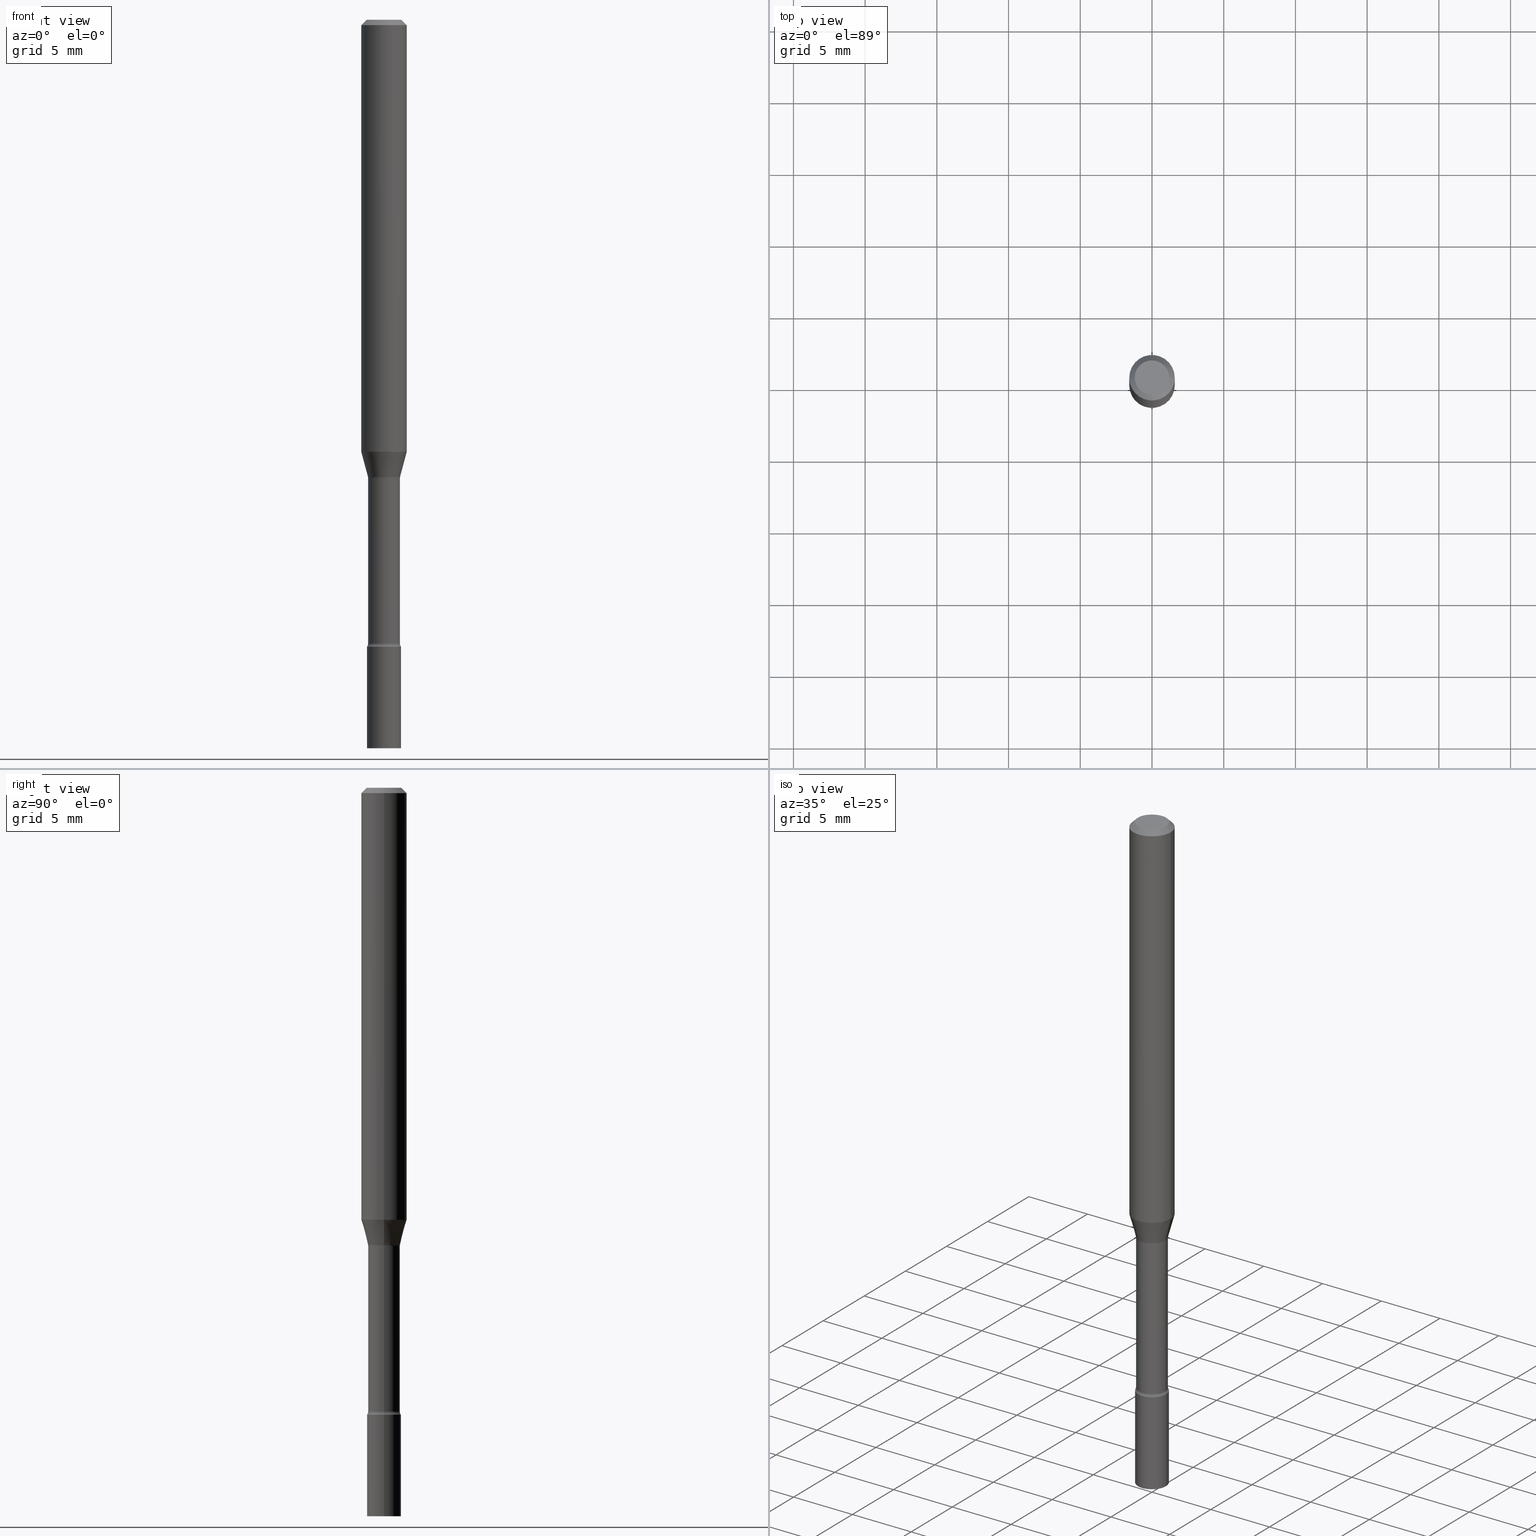
[diagram: canonical four-view strip — front | top / right | iso, engineering-drawing reading convention]
A machine part, canonical four-view strip (front | top / right | iso — engineering-drawing reading convention). The complete STEP part file that produces these views, byte-faithful:
ISO-10303-21;
HEADER;
FILE_DESCRIPTION (( 'STEP AP203' ),
    '1' );
FILE_NAME ('09395.STEP',
    '2024-03-08T23:40:34',
    ( '' ),
    ( '' ),
    'SwSTEP 2.0',
    'SolidWorks 2023',
    '' );
FILE_SCHEMA (( 'CONFIG_CONTROL_DESIGN' ));
ENDSEC;

DATA;
#1 = FACE_OUTER_BOUND ( 'NONE', #452, .T. ) ;
#2 = VERTEX_POINT ( 'NONE', #27 ) ;
#3 = CARTESIAN_POINT ( 'NONE',  ( 0.04421111260566398110, -4.687365116437714355E-15, -1.254092501787273051 ) ) ;
#4 = CIRCLE ( 'NONE', #293, 0.04369999999999994722 ) ;
#5 = VERTEX_POINT ( 'NONE', #342 ) ;
#6 = DIRECTION ( 'NONE',  ( -1.000000000000000000, 7.105427357601009747E-15, 0.000000000000000000 ) ) ;
#7 = ORIENTED_EDGE ( 'NONE', *, *, #67, .T. ) ;
#8 = LOCAL_TIME ( 18, 40, 34.00000000000000000, #438 ) ;
#9 = ADVANCED_BREP_SHAPE_REPRESENTATION ( '09395', ( #127, #250, #129 ), #277 ) ;
#10 = VECTOR ( 'NONE', #117, 39.37007874015748143 ) ;
#11 = DIRECTION ( 'NONE',  ( -2.445468806185136597E-29, 3.491481338843145583E-15, 1.000000000000000000 ) ) ;
#12 = ORIENTED_EDGE ( 'NONE', *, *, #119, .F. ) ;
#13 = PLANE ( 'NONE',  #120 ) ;
#14 = ORIENTED_EDGE ( 'NONE', *, *, #245, .F. ) ;
#15 = PRODUCT_DEFINITION ( 'UNKNOWN', '', #72, #295 ) ;
#16 = DIRECTION ( 'NONE',  ( -0.2588190451025214611, 5.211531920934550253E-15, 0.9659258262890679791 ) ) ;
#17 = EDGE_LOOP ( 'NONE', ( #235, #61, #352, #364 ) ) ;
#18 = LOCAL_TIME ( 18, 40, 34.00000000000000000, #380 ) ;
#19 = PERSON_AND_ORGANIZATION ( #410, #106 ) ;
#20 = PERSON_AND_ORGANIZATION ( #410, #106 ) ;
#21 = DIRECTION ( 'NONE',  ( -0.7071067811865475727, 2.468850131082257455E-15, -0.7071067811865474617 ) ) ;
#22 = AXIS2_PLACEMENT_3D ( 'NONE', #159, #203, #314 ) ;
#23 = CALENDAR_DATE ( 2024, 8, 3 ) ;
#24 = EDGE_CURVE ( 'NONE', #417, #465, #470, .T. ) ;
#25 = FACE_OUTER_BOUND ( 'NONE', #138, .T. ) ;
#26 = CARTESIAN_POINT ( 'NONE',  ( 0.000000000000000000, 0.000000000000000000, 0.000000000000000000 ) ) ;
#27 = CARTESIAN_POINT ( 'NONE',  ( -0.04421111260566398110, -3.880370908893754533E-15, -1.254092501787273051 ) ) ;
#28 = APPROVAL_STATUS ( 'not_yet_approved' ) ;
#29 = DIRECTION ( 'NONE',  ( 1.000000000000000000, -6.982962677686261977E-15, 4.883557194083111219E-29 ) ) ;
#30 = DATE_TIME_ROLE ( 'classification_date' ) ;
#31 = DIRECTION ( 'NONE',  ( 2.445468806185136597E-29, -3.491481338843145583E-15, -1.000000000000000000 ) ) ;
#32 = VECTOR ( 'NONE', #126, 39.37007874015748143 ) ;
#33 = CARTESIAN_POINT ( 'NONE',  ( 3.668203209277712094E-31, -5.237222008264728876E-17, -0.01500000000000003067 ) ) ;
#34 = VERTEX_POINT ( 'NONE', #182 ) ;
#35 = PERSON_AND_ORGANIZATION ( #410, #106 ) ;
#36 = CARTESIAN_POINT ( 'NONE',  ( 0.06250000000000000000, -4.576764476837847734E-15, -1.185837444817705144 ) ) ;
#37 = VERTEX_POINT ( 'NONE', #381 ) ;
#38 = SHAPE_DEFINITION_REPRESENTATION ( #186, #9 ) ;
#39 = AXIS2_PLACEMENT_3D ( 'NONE', #123, #307, #274 ) ;
#40 = EDGE_CURVE ( 'NONE', #88, #465, #379, .T. ) ;
#41 = CARTESIAN_POINT ( 'NONE',  ( 3.668203209277712094E-31, -5.237222008264728876E-17, -0.01500000000000003067 ) ) ;
#42 = ORIENTED_EDGE ( 'NONE', *, *, #201, .T. ) ;
#43 = PERSON_AND_ORGANIZATION_ROLE ( 'classification_officer' ) ;
#44 = DIRECTION ( 'NONE',  ( -1.000000000000000000, 7.105427357601001859E-15, 0.000000000000000000 ) ) ;
#45 = ORIENTED_EDGE ( 'NONE', *, *, #67, .F. ) ;
#46 = DIRECTION ( 'NONE',  ( -2.445468806185136597E-29, 3.491481338843145583E-15, 1.000000000000000000 ) ) ;
#47 = VERTEX_POINT ( 'NONE', #340 ) ;
#48 = EDGE_CURVE ( 'NONE', #37, #5, #509, .T. ) ;
#49 = DIRECTION ( 'NONE',  ( 1.000000000000000000, -6.982962677686255667E-15, 0.000000000000000000 ) ) ;
#50 = CIRCLE ( 'NONE', #440, 0.06250000000000000000 ) ;
#51 = ORIENTED_EDGE ( 'NONE', *, *, #208, .T. ) ;
#52 = CARTESIAN_POINT ( 'NONE',  ( 0.04649999999999999967, -7.307670442198702662E-15, -2.000000000000000000 ) ) ;
#53 = ORIENTED_EDGE ( 'NONE', *, *, #146, .T. ) ;
#54 = CIRCLE ( 'NONE', #412, 0.06250000000000000000 ) ;
#55 = CARTESIAN_POINT ( 'NONE',  ( 0.000000000000000000, 0.000000000000000000, 0.000000000000000000 ) ) ;
#56 = ADVANCED_FACE ( 'NONE', ( #25 ), #185, .T. ) ;
#57 = EDGE_LOOP ( 'NONE', ( #85, #42, #484, #285 ) ) ;
#58 = FACE_OUTER_BOUND ( 'NONE', #205, .T. ) ;
#59 = EDGE_CURVE ( 'NONE', #160, #321, #425, .T. ) ;
#60 = CC_DESIGN_PERSON_AND_ORGANIZATION_ASSIGNMENT ( #339, #263, ( #15 ) ) ;
#61 = ORIENTED_EDGE ( 'NONE', *, *, #517, .T. ) ;
#62 = AXIS2_PLACEMENT_3D ( 'NONE', #505, #419, #145 ) ;
#63 = CARTESIAN_POINT ( 'NONE',  ( -0.04649999999999999967, -6.165498658789225463E-15, -2.000000000000000000 ) ) ;
#64 = FACE_OUTER_BOUND ( 'NONE', #198, .T. ) ;
#65 = AXIS2_PLACEMENT_3D ( 'NONE', #82, #360, #101 ) ;
#66 = DIRECTION ( 'NONE',  ( -2.445468806185136597E-29, 3.491481338843145583E-15, 1.000000000000000000 ) ) ;
#67 = EDGE_CURVE ( 'NONE', #501, #213, #148, .T. ) ;
#68 = APPROVAL_STATUS ( 'not_yet_approved' ) ;
#69 = FACE_OUTER_BOUND ( 'NONE', #486, .T. ) ;
#70 = APPROVAL ( #28, 'UNSPECIFIED' ) ;
#71 = CARTESIAN_POINT ( 'NONE',  ( 0.04421111260566398110, -4.687365116437714355E-15, -1.254092501787273051 ) ) ;
#72 = PRODUCT_DEFINITION_FORMATION_WITH_SPECIFIED_SOURCE ( 'ANY', '', #385, .NOT_KNOWN. ) ;
#73 = APPLICATION_PROTOCOL_DEFINITION ( 'international standard', 'config_control_design', 1994, #91 ) ;
#74 = CARTESIAN_POINT ( 'NONE',  ( -0.06250000000000000000, 3.840629472727443437E-16, -0.01500000000000003067 ) ) ;
#75 = COORDINATED_UNIVERSAL_TIME_OFFSET ( 5, 0, .BEHIND. ) ;
#76 = CARTESIAN_POINT ( 'NONE',  ( 4.187310283291023133E-29, -5.978369332325802035E-15, -1.712273030308291144 ) ) ;
#77 = CIRCLE ( 'NONE', #331, 0.04649999999999999967 ) ;
#78 = DATE_AND_TIME ( #81, #519 ) ;
#79 = LINE ( 'NONE', #87, #222 ) ;
#80 = EDGE_LOOP ( 'NONE', ( #207, #357, #102, #407 ) ) ;
#81 = CALENDAR_DATE ( 2024, 8, 3 ) ;
#82 = CARTESIAN_POINT ( 'NONE',  ( 3.247077645124535035E-16, 0.04649999999999399058, -1.721000000000000307 ) ) ;
#83 = ADVANCED_FACE ( 'NONE', ( #69 ), #418, .T. ) ;
#84 = CARTESIAN_POINT ( 'NONE',  ( 4.208651815444620572E-29, -6.008839384149054309E-15, -1.721000000000000085 ) ) ;
#85 = ORIENTED_EDGE ( 'NONE', *, *, #286, .F. ) ;
#86 = VECTOR ( 'NONE', #349, 39.37007874015748143 ) ;
#87 = CARTESIAN_POINT ( 'NONE',  ( 0.06250000000000000000, -4.811533449433680977E-16, -0.01500000000000003067 ) ) ;
#88 = VERTEX_POINT ( 'NONE', #297 ) ;
#89 = DIRECTION ( 'NONE',  ( -6.982962677686266711E-15, -1.000000000000000000, 3.491481338843145583E-15 ) ) ;
#90 = EDGE_LOOP ( 'NONE', ( #489, #403 ) ) ;
#91 = APPLICATION_CONTEXT ( 'configuration controlled 3d designs of mechanical parts and assemblies' ) ;
#92 = CARTESIAN_POINT ( 'NONE',  ( 7.070806723891919892E-46, -1.009523804376275404E-31, -2.891391092786900929E-17 ) ) ;
#93 = VERTEX_POINT ( 'NONE', #228 ) ;
#94 = DIRECTION ( 'NONE',  ( 1.000000000000000000, -6.982962677686266711E-15, 0.000000000000000000 ) ) ;
#95 = VECTOR ( 'NONE', #150, 39.37007874015748143 ) ;
#96 = VERTEX_POINT ( 'NONE', #265 ) ;
#97 = ADVANCED_FACE ( 'NONE', ( #463 ), #483, .F. ) ;
#98 = LINE ( 'NONE', #278, #32 ) ;
#99 = ORIENTED_EDGE ( 'NONE', *, *, #193, .T. ) ;
#100 = AXIS2_PLACEMENT_3D ( 'NONE', #243, #287, #206 ) ;
#101 = DIRECTION ( 'NONE',  ( 1.000000000000000000, -6.982962677686265922E-15, 4.876176775795935793E-29 ) ) ;
#102 = ORIENTED_EDGE ( 'NONE', *, *, #333, .T. ) ;
#103 = CARTESIAN_POINT ( 'NONE',  ( 0.000000000000000000, 0.000000000000000000, 0.000000000000000000 ) ) ;
#104 = ORIENTED_EDGE ( 'NONE', *, *, #59, .T. ) ;
#105 = FACE_OUTER_BOUND ( 'NONE', #134, .T. ) ;
#106 = ORGANIZATION ( 'UNSPECIFIED', 'UNSPECIFIED', '' ) ;
#107 = CARTESIAN_POINT ( 'NONE',  ( -0.06250000000000000000, 4.440892098500626162E-16, -3.074334431409316114E-30 ) ) ;
#108 = APPROVAL_ROLE ( '' ) ;
#109 = ORIENTED_EDGE ( 'NONE', *, *, #421, .T. ) ;
#110 = CIRCLE ( 'NONE', #230, 0.04749999999999999362 ) ;
#111 = CC_DESIGN_PERSON_AND_ORGANIZATION_ASSIGNMENT ( #20, #384, ( #385 ) ) ;
#112 = DIRECTION ( 'NONE',  ( -2.445468806185136597E-29, 3.491481338843145583E-15, 1.000000000000000000 ) ) ;
#113 = AXIS2_PLACEMENT_3D ( 'NONE', #174, #11, #166 ) ;
#114 = PERSON_AND_ORGANIZATION_ROLE ( 'creator' ) ;
#115 = CARTESIAN_POINT ( 'NONE',  ( 4.208651815444620572E-29, -6.008839384149054309E-15, -1.721000000000000085 ) ) ;
#116 = CARTESIAN_POINT ( 'NONE',  ( 0.04369999999999997498, -3.051554690148896707E-16, 2.130889251022822588E-30 ) ) ;
#117 = DIRECTION ( 'NONE',  ( -2.445468806185136877E-29, 3.491481338843145188E-15, 1.000000000000000000 ) ) ;
#118 = ORIENTED_EDGE ( 'NONE', *, *, #261, .F. ) ;
#119 = EDGE_CURVE ( 'NONE', #96, #280, #329, .T. ) ;
#120 = AXIS2_PLACEMENT_3D ( 'NONE', #409, #164, #284 ) ;
#121 = DIRECTION ( 'NONE',  ( 1.000000000000000000, -6.982962677686262766E-15, 0.000000000000000000 ) ) ;
#122 = PRODUCT_RELATED_PRODUCT_CATEGORY ( 'detail', '', ( #385 ) ) ;
#123 = CARTESIAN_POINT ( 'NONE',  ( 3.076338101710126374E-29, -4.392195495165068238E-15, -1.257974787463810973 ) ) ;
#124 = ORIENTED_EDGE ( 'NONE', *, *, #48, .T. ) ;
#125 = CIRCLE ( 'NONE', #309, 0.06250000000000000000 ) ;
#126 = DIRECTION ( 'NONE',  ( -2.445468806185136877E-29, 3.491481338843145188E-15, 1.000000000000000000 ) ) ;
#127 = MANIFOLD_SOLID_BREP ( 'Body-Move/Copy2[1]', #189 ) ;
#128 = DIRECTION ( 'NONE',  ( 1.000000000000000000, -6.982962677686262766E-15, 0.000000000000000000 ) ) ;
#129 = AXIS2_PLACEMENT_3D ( 'NONE', #266, #292, #378 ) ;
#130 = ORIENTED_EDGE ( 'NONE', *, *, #318, .F. ) ;
#131 = CARTESIAN_POINT ( 'NONE',  ( -0.04421111260566398110, -4.064501718155114829E-15, -1.254092501787273051 ) ) ;
#132 = ORIENTED_EDGE ( 'NONE', *, *, #319, .T. ) ;
#133 = DIRECTION ( 'NONE',  ( -2.445468806185136597E-29, 3.491481338843145583E-15, 1.000000000000000000 ) ) ;
#134 = EDGE_LOOP ( 'NONE', ( #14, #169, #326, #53 ) ) ;
#135 = CARTESIAN_POINT ( 'NONE',  ( -0.06250000000000000000, -1.652261554932489153E-15, -0.01500000000000003067 ) ) ;
#136 = VERTEX_POINT ( 'NONE', #223 ) ;
#137 = MECHANICAL_CONTEXT ( 'NONE', #312, 'mechanical' ) ;
#138 = EDGE_LOOP ( 'NONE', ( #480, #437 ) ) ;
#139 = APPROVAL_DATE_TIME ( #178, #70 ) ;
#140 = CARTESIAN_POINT ( 'NONE',  ( -0.04369999999999997498, 3.105071755271636034E-16, -2.149574634441392424E-30 ) ) ;
#141 = CIRCLE ( 'NONE', #161, 0.04370000000000000273 ) ;
#142 = CYLINDRICAL_SURFACE ( 'NONE', #372, 0.04369999999999997498 ) ;
#143 = DIRECTION ( 'NONE',  ( 1.000000000000000000, -6.982962677686264344E-15, 0.000000000000000000 ) ) ;
#144 = DIRECTION ( 'NONE',  ( -2.445468806185136597E-29, 3.491481338843145583E-15, 1.000000000000000000 ) ) ;
#145 = DIRECTION ( 'NONE',  ( 1.000000000000000000, -6.982962677686260400E-15, 0.000000000000000000 ) ) ;
#146 = EDGE_CURVE ( 'NONE', #280, #96, #408, .T. ) ;
#147 = PERSON_AND_ORGANIZATION ( #410, #106 ) ;
#148 = LINE ( 'NONE', #71, #387 ) ;
#149 = VECTOR ( 'NONE', #21, 39.37007874015748143 ) ;
#150 = DIRECTION ( 'NONE',  ( -2.445468806185136877E-29, 3.491481338843145188E-15, 1.000000000000000000 ) ) ;
#151 = VECTOR ( 'NONE', #16, 39.37007874015748143 ) ;
#152 = DIRECTION ( 'NONE',  ( 1.000000000000000000, -6.982962677686267499E-15, 4.876176775795936353E-29 ) ) ;
#153 = PERSON_AND_ORGANIZATION ( #410, #106 ) ;
#154 = DIRECTION ( 'NONE',  ( -1.000000000000000000, 6.982962677686266711E-15, 0.000000000000000000 ) ) ;
#155 = CARTESIAN_POINT ( 'NONE',  ( 0.06250000000000000000, -4.364351673553916694E-16, 3.047610484872459871E-30 ) ) ;
#156 = SECURITY_CLASSIFICATION_LEVEL ( 'unclassified' ) ;
#157 = APPROVAL_PERSON_ORGANIZATION ( #19, #70, #187 ) ;
#158 = CARTESIAN_POINT ( 'NONE',  ( -0.04649999999999999967, -6.165498658789225463E-15, -1.721000000000000085 ) ) ;
#159 = CARTESIAN_POINT ( 'NONE',  ( 3.076338101710126374E-29, -4.392195495165068238E-15, -1.257974787463810973 ) ) ;
#160 = VERTEX_POINT ( 'NONE', #63 ) ;
#161 = AXIS2_PLACEMENT_3D ( 'NONE', #376, #354, #439 ) ;
#162 = CARTESIAN_POINT ( 'NONE',  ( 3.668203209277712094E-31, -5.237222008264728876E-17, -0.01500000000000003067 ) ) ;
#163 = EDGE_LOOP ( 'NONE', ( #225, #317, #216, #244 ) ) ;
#164 = DIRECTION ( 'NONE',  ( 2.438088387897960049E-29, -3.491481338843145188E-15, -1.000000000000000000 ) ) ;
#165 = ORIENTED_EDGE ( 'NONE', *, *, #208, .F. ) ;
#166 = DIRECTION ( 'NONE',  ( 1.000000000000000000, -6.982962677686260400E-15, 0.000000000000000000 ) ) ;
#167 = EDGE_CURVE ( 'NONE', #501, #2, #239, .T. ) ;
#168 = ADVANCED_FACE ( 'NONE', ( #105 ), #398, .F. ) ;
#169 = ORIENTED_EDGE ( 'NONE', *, *, #402, .F. ) ;
#170 = CARTESIAN_POINT ( 'NONE',  ( 0.05870000000000000218, -4.802095404345251475E-15, -1.257974787463810973 ) ) ;
#171 = CLOSED_SHELL ( 'NONE', ( #262, #510, #97, #348, #224, #177, #83, #449, #327, #413, #350, #168, #511, #488 ) ) ;
#172 = ORIENTED_EDGE ( 'NONE', *, *, #450, .T. ) ;
#173 = APPROVAL ( #396, 'UNSPECIFIED' ) ;
#174 = CARTESIAN_POINT ( 'NONE',  ( 4.208651815444620572E-29, -6.008839384149054309E-15, -1.721000000000000085 ) ) ;
#175 = ORIENTED_EDGE ( 'NONE', *, *, #481, .F. ) ;
#176 = CIRCLE ( 'NONE', #362, 0.04749999999999999362 ) ;
#177 = ADVANCED_FACE ( 'NONE', ( #179 ), #359, .T. ) ;
#178 = DATE_AND_TIME ( #371, #18 ) ;
#179 = FACE_OUTER_BOUND ( 'NONE', #335, .T. ) ;
#180 = CARTESIAN_POINT ( 'NONE',  ( 0.06250000000000000000, -4.888073874380389458E-16, -0.01500000000000003067 ) ) ;
#181 = VECTOR ( 'NONE', #503, 39.37007874015748143 ) ;
#182 = CARTESIAN_POINT ( 'NONE',  ( 0.04369999999999994722, -6.283524801340691903E-15, -1.712273030308291144 ) ) ;
#183 = DIRECTION ( 'NONE',  ( -2.445468806185136597E-29, 3.491481338843145583E-15, 1.000000000000000000 ) ) ;
#184 = AXIS2_PLACEMENT_3D ( 'NONE', #204, #323, #330 ) ;
#185 = PLANE ( 'NONE',  #377 ) ;
#186 = PRODUCT_DEFINITION_SHAPE ( 'NONE', 'NONE',  #15 ) ;
#187 = APPROVAL_ROLE ( '' ) ;
#188 = DIRECTION ( 'NONE',  ( 1.000000000000000000, -6.982962677686260400E-15, 0.000000000000000000 ) ) ;
#189 = CLOSED_SHELL ( 'NONE', ( #279, #56, #355, #382 ) ) ;
#190 = DIRECTION ( 'NONE',  ( -1.000000000000000000, 6.982962677686266711E-15, 0.000000000000000000 ) ) ;
#191 = AXIS2_PLACEMENT_3D ( 'NONE', #237, #473, #200 ) ;
#192 = CC_DESIGN_APPROVAL ( #70, ( #72 ) ) ;
#193 = EDGE_CURVE ( 'NONE', #47, #5, #141, .T. ) ;
#194 = DIRECTION ( 'NONE',  ( 2.445468806185136597E-29, -3.491481338843145583E-15, -1.000000000000000000 ) ) ;
#195 = ORIENTED_EDGE ( 'NONE', *, *, #420, .T. ) ;
#196 = CONICAL_SURFACE ( 'NONE', #394, 0.06250000000000000000, 0.7853981633974483900 ) ;
#197 = DIRECTION ( 'NONE',  ( -2.445468806185136597E-29, 3.491481338843145583E-15, 1.000000000000000000 ) ) ;
#198 = EDGE_LOOP ( 'NONE', ( #345, #124, #474, #367 ) ) ;
#199 = CIRCLE ( 'NONE', #22, 0.04370000000000000273 ) ;
#200 = DIRECTION ( 'NONE',  ( 1.000000000000000000, -6.982962677686264344E-15, 0.000000000000000000 ) ) ;
#201 = EDGE_CURVE ( 'NONE', #93, #515, #79, .T. ) ;
#202 = ORIENTED_EDGE ( 'NONE', *, *, #478, .F. ) ;
#203 = DIRECTION ( 'NONE',  ( -2.445468806185136597E-29, 3.491481338843145583E-15, 1.000000000000000000 ) ) ;
#204 = CARTESIAN_POINT ( 'NONE',  ( 3.076338101710126374E-29, -4.392195495165068238E-15, -1.257974787463810973 ) ) ;
#205 = EDGE_LOOP ( 'NONE', ( #442, #411, #51, #332 ) ) ;
#206 = DIRECTION ( 'NONE',  ( 1.000000000000000000, -6.982962677686272233E-15, 0.000000000000000000 ) ) ;
#207 = ORIENTED_EDGE ( 'NONE', *, *, #48, .F. ) ;
#208 = EDGE_CURVE ( 'NONE', #213, #515, #476, .T. ) ;
#209 = FACE_OUTER_BOUND ( 'NONE', #90, .T. ) ;
#210 = AXIS2_PLACEMENT_3D ( 'NONE', #296, #429, #221 ) ;
#211 = ORIENTED_EDGE ( 'NONE', *, *, #167, .F. ) ;
#212 = CC_DESIGN_DATE_AND_TIME_ASSIGNMENT ( #427, #507, ( #15 ) ) ;
#213 = VERTEX_POINT ( 'NONE', #36 ) ;
#214 = DIRECTION ( 'NONE',  ( 1.000000000000000000, -6.982962677686266711E-15, 4.876176775795935793E-29 ) ) ;
#215 = CIRCLE ( 'NONE', #351, 0.01500000000000011394 ) ;
#216 = ORIENTED_EDGE ( 'NONE', *, *, #40, .T. ) ;
#217 = DATE_AND_TIME ( #504, #496 ) ;
#218 = DIRECTION ( 'NONE',  ( 1.000000000000000000, -6.982962677686264344E-15, 0.000000000000000000 ) ) ;
#219 = DIRECTION ( 'NONE',  ( 1.000000000000000000, -6.982962677686264344E-15, 0.000000000000000000 ) ) ;
#220 = CIRCLE ( 'NONE', #358, 0.06250000000000000000 ) ;
#221 = DIRECTION ( 'NONE',  ( 1.000000000000000000, -6.982962677686260400E-15, 0.000000000000000000 ) ) ;
#222 = VECTOR ( 'NONE', #393, 39.37007874015748143 ) ;
#223 = CARTESIAN_POINT ( 'NONE',  ( 0.04649999999999999967, -6.333547148661465016E-15, -1.721000000000000085 ) ) ;
#224 = ADVANCED_FACE ( 'NONE', ( #1 ), #353, .T. ) ;
#225 = ORIENTED_EDGE ( 'NONE', *, *, #201, .F. ) ;
#226 = SECURITY_CLASSIFICATION ( '', '', #156 ) ;
#227 = COORDINATED_UNIVERSAL_TIME_OFFSET ( 5, 0, .BEHIND. ) ;
#228 = CARTESIAN_POINT ( 'NONE',  ( 0.04749999999999999362, -4.035134999187579609E-16, -2.891391092786643933E-17 ) ) ;
#229 = DIRECTION ( 'NONE',  ( 1.000000000000000000, -6.982962677686272233E-15, 0.000000000000000000 ) ) ;
#230 = AXIS2_PLACEMENT_3D ( 'NONE', #471, #347, #234 ) ;
#231 = EDGE_CURVE ( 'NONE', #515, #465, #50, .T. ) ;
#232 = CARTESIAN_POINT ( 'NONE',  ( 0.000000000000000000, 0.000000000000000000, 0.000000000000000000 ) ) ;
#233 = AXIS2_PLACEMENT_3D ( 'NONE', #281, #46, #451 ) ;
#234 = DIRECTION ( 'NONE',  ( 1.000000000000000000, -6.982962677686267499E-15, 4.876681293081646444E-29 ) ) ;
#235 = ORIENTED_EDGE ( 'NONE', *, *, #59, .F. ) ;
#236 = PERSON_AND_ORGANIZATION ( #410, #106 ) ;
#237 = CARTESIAN_POINT ( 'NONE',  ( 3.066844093191453631E-29, -4.378640567173378440E-15, -1.254092501787273051 ) ) ;
#238 = ORIENTED_EDGE ( 'NONE', *, *, #461, .T. ) ;
#239 = CIRCLE ( 'NONE', #247, 0.04421111260566398110 ) ;
#240 = CARTESIAN_POINT ( 'NONE',  ( -0.05870000000000006463, -5.561280746434622619E-15, -1.712273030308291144 ) ) ;
#241 = AXIS2_PLACEMENT_3D ( 'NONE', #485, #363, #6 ) ;
#242 = CARTESIAN_POINT ( 'NONE',  ( 3.247077645124602582E-16, 0.04649999999999301914, -2.000000000000000444 ) ) ;
#243 = CARTESIAN_POINT ( 'NONE',  ( 4.187310283291023133E-29, -5.978369332325802035E-15, -1.712273030308291144 ) ) ;
#244 = ORIENTED_EDGE ( 'NONE', *, *, #374, .T. ) ;
#245 = EDGE_CURVE ( 'NONE', #37, #96, #215, .T. ) ;
#246 = EDGE_CURVE ( 'NONE', #5, #47, #199, .T. ) ;
#247 = AXIS2_PLACEMENT_3D ( 'NONE', #301, #428, #218 ) ;
#248 = DIRECTION ( 'NONE',  ( -2.445468806185136597E-29, 3.491481338843145583E-15, 1.000000000000000000 ) ) ;
#249 = ORIENTED_EDGE ( 'NONE', *, *, #24, .T. ) ;
#250 = MANIFOLD_SOLID_BREP ( 'Body-Move/Copy2[2]', #171 ) ;
#251 = CARTESIAN_POINT ( 'NONE',  ( -0.06250000000000000000, -3.696240099632393448E-15, -1.185837444817705144 ) ) ;
#252 = CIRCLE ( 'NONE', #210, 0.04649999999999999967 ) ;
#253 = ORIENTED_EDGE ( 'NONE', *, *, #246, .T. ) ;
#254 = CYLINDRICAL_SURFACE ( 'NONE', #443, 0.06250000000000000000 ) ;
#255 = ORIENTED_EDGE ( 'NONE', *, *, #146, .F. ) ;
#256 = DIRECTION ( 'NONE',  ( 1.000000000000000000, -6.982962677686266711E-15, 4.876176775795935232E-29 ) ) ;
#257 = ORIENTED_EDGE ( 'NONE', *, *, #506, .T. ) ;
#258 = DIRECTION ( 'NONE',  ( 1.000000000000000000, -6.982962677686266711E-15, 4.876176775795935232E-29 ) ) ;
#259 = DIRECTION ( 'NONE',  ( -2.445468806185136597E-29, 3.491481338843145583E-15, 1.000000000000000000 ) ) ;
#260 = ORIENTED_EDGE ( 'NONE', *, *, #245, .T. ) ;
#261 = EDGE_CURVE ( 'NONE', #417, #213, #125, .T. ) ;
#262 = ADVANCED_FACE ( 'NONE', ( #482 ), #493, .F. ) ;
#263 = PERSON_AND_ORGANIZATION_ROLE ( 'creator' ) ;
#264 = AXIS2_PLACEMENT_3D ( 'NONE', #386, #183, #29 ) ;
#265 = CARTESIAN_POINT ( 'NONE',  ( -0.04650000000000006212, -5.678437012020607034E-15, -1.721000000000000085 ) ) ;
#266 = CARTESIAN_POINT ( 'NONE',  ( 0.000000000000000000, 0.000000000000000000, 0.000000000000000000 ) ) ;
#267 = CARTESIAN_POINT ( 'NONE',  ( -0.04649999999999999967, 3.304023721284465841E-16, -2.287304816968531530E-30 ) ) ;
#268 = FACE_OUTER_BOUND ( 'NONE', #57, .T. ) ;
#269 = AXIS2_PLACEMENT_3D ( 'NONE', #115, #430, #188 ) ;
#270 = APPROVAL_DATE_TIME ( #306, #173 ) ;
#271 = FACE_OUTER_BOUND ( 'NONE', #491, .T. ) ;
#272 = AXIS2_PLACEMENT_3D ( 'NONE', #170, #89, #49 ) ;
#273 = CYLINDRICAL_SURFACE ( 'NONE', #459, 0.04649999999999999967 ) ;
#274 = DIRECTION ( 'NONE',  ( 1.000000000000000000, -6.982962677686262766E-15, 4.883557194083111780E-29 ) ) ;
#275 = ORIENTED_EDGE ( 'NONE', *, *, #450, .F. ) ;
#276 = FACE_OUTER_BOUND ( 'NONE', #17, .T. ) ;
#277 =( GEOMETRIC_REPRESENTATION_CONTEXT ( 3 ) GLOBAL_UNCERTAINTY_ASSIGNED_CONTEXT ( ( #400 ) ) GLOBAL_UNIT_ASSIGNED_CONTEXT ( ( #302, #423, #337 ) ) REPRESENTATION_CONTEXT ( 'NONE', 'WORKASPACE' ) );
#278 = CARTESIAN_POINT ( 'NONE',  ( 0.04649999999999999967, -3.247077645124114474E-16, 2.267422200745110326E-30 ) ) ;
#279 = ADVANCED_FACE ( 'NONE', ( #518 ), #273, .T. ) ;
#280 = VERTEX_POINT ( 'NONE', #305 ) ;
#281 = CARTESIAN_POINT ( 'NONE',  ( 4.890937612370273194E-29, -6.982962677686291165E-15, -2.000000000000000000 ) ) ;
#282 = ORIENTED_EDGE ( 'NONE', *, *, #167, .T. ) ;
#283 = VECTOR ( 'NONE', #373, 39.37007874015748143 ) ;
#284 = DIRECTION ( 'NONE',  ( -1.000000000000000000, 6.982962677686265922E-15, -4.876176775795935793E-29 ) ) ;
#285 = ORIENTED_EDGE ( 'NONE', *, *, #40, .F. ) ;
#286 = EDGE_CURVE ( 'NONE', #93, #88, #110, .T. ) ;
#287 = DIRECTION ( 'NONE',  ( -2.445468806185136597E-29, 3.491481338843145583E-15, 1.000000000000000000 ) ) ;
#288 = CC_DESIGN_SECURITY_CLASSIFICATION ( #226, ( #72 ) ) ;
#289 = ORIENTED_EDGE ( 'NONE', *, *, #319, .F. ) ;
#290 = DIRECTION ( 'NONE',  ( -2.445468806185136597E-29, 3.491481338843145583E-15, 1.000000000000000000 ) ) ;
#291 = ORIENTED_EDGE ( 'NONE', *, *, #286, .T. ) ;
#292 = DIRECTION ( 'NONE',  ( 0.000000000000000000, 0.000000000000000000, 1.000000000000000000 ) ) ;
#293 = AXIS2_PLACEMENT_3D ( 'NONE', #76, #436, #229 ) ;
#294 = DIRECTION ( 'NONE',  ( -2.438088387897960049E-29, 3.491481338843145188E-15, 1.000000000000000000 ) ) ;
#295 = DESIGN_CONTEXT ( 'detailed design', #91, 'design' ) ;
#296 = CARTESIAN_POINT ( 'NONE',  ( 4.890937612370273194E-29, -6.982962677686291165E-15, -2.000000000000000000 ) ) ;
#297 = CARTESIAN_POINT ( 'NONE',  ( -0.04749999999999999362, 3.578768372314209027E-16, -2.891391092787141902E-17 ) ) ;
#298 = CIRCLE ( 'NONE', #241, 0.01500000000000002720 ) ;
#299 = EDGE_CURVE ( 'NONE', #37, #34, #4, .T. ) ;
#300 =( LENGTH_UNIT ( ) NAMED_UNIT ( * ) SI_UNIT ( $, .METRE. ) );
#301 = CARTESIAN_POINT ( 'NONE',  ( 3.066844093191453631E-29, -4.378640567173378440E-15, -1.254092501787273051 ) ) ;
#302 =( CONVERSION_BASED_UNIT ( 'INCH', #456 ) LENGTH_UNIT ( ) NAMED_UNIT ( #405 ) );
#303 = DIRECTION ( 'NONE',  ( 0.2588190451025214611, 1.565188264969620982E-15, 0.9659258262890679791 ) ) ;
#304 = CARTESIAN_POINT ( 'NONE',  ( 3.066844093191453631E-29, -4.378640567173378440E-15, -1.254092501787273051 ) ) ;
#305 = CARTESIAN_POINT ( 'NONE',  ( 0.04650000000000006212, -6.333547148661465805E-15, -1.721000000000000085 ) ) ;
#306 = DATE_AND_TIME ( #475, #8 ) ;
#307 = DIRECTION ( 'NONE',  ( -2.445468806185136597E-29, 3.491481338843145583E-15, 1.000000000000000000 ) ) ;
#308 = CIRCLE ( 'NONE', #341, 0.01500000000000011394 ) ;
#309 = AXIS2_PLACEMENT_3D ( 'NONE', #316, #516, #121 ) ;
#310 = ORIENTED_EDGE ( 'NONE', *, *, #392, .F. ) ;
#311 = CARTESIAN_POINT ( 'NONE',  ( 0.000000000000000000, 0.000000000000000000, 0.000000000000000000 ) ) ;
#312 = APPLICATION_CONTEXT ( 'configuration controlled 3d designs of mechanical parts and assemblies' ) ;
#313 = CIRCLE ( 'NONE', #113, 0.04649999999999999967 ) ;
#314 = DIRECTION ( 'NONE',  ( 1.000000000000000000, -6.982962677686263555E-15, 0.000000000000000000 ) ) ;
#315 = CC_DESIGN_DATE_AND_TIME_ASSIGNMENT ( #78, #30, ( #226 ) ) ;
#316 = CARTESIAN_POINT ( 'NONE',  ( 2.899928480507986581E-29, -4.140329309482456065E-15, -1.185837444817705144 ) ) ;
#317 = ORIENTED_EDGE ( 'NONE', *, *, #506, .F. ) ;
#318 = EDGE_CURVE ( 'NONE', #136, #321, #77, .T. ) ;
#319 = EDGE_CURVE ( 'NONE', #2, #501, #389, .T. ) ;
#320 = DIRECTION ( 'NONE',  ( -6.982962677686266711E-15, -1.000000000000000000, 3.491481338843145583E-15 ) ) ;
#321 = VERTEX_POINT ( 'NONE', #158 ) ;
#322 = APPROVAL_PERSON_ORGANIZATION ( #147, #336, #108 ) ;
#323 = DIRECTION ( 'NONE',  ( -2.445468806185136597E-29, 3.491481338843145583E-15, 1.000000000000000000 ) ) ;
#324 = ORIENTED_EDGE ( 'NONE', *, *, #119, .T. ) ;
#325 = LINE ( 'NONE', #131, #151 ) ;
#326 = ORIENTED_EDGE ( 'NONE', *, *, #392, .T. ) ;
#327 = ADVANCED_FACE ( 'NONE', ( #346 ), #513, .T. ) ;
#328 = AXIS2_PLACEMENT_3D ( 'NONE', #242, #404, #356 ) ;
#329 = CIRCLE ( 'NONE', #269, 0.04649999999999999967 ) ;
#330 = DIRECTION ( 'NONE',  ( 1.000000000000000000, -6.982962677686262766E-15, 4.883557194083111780E-29 ) ) ;
#331 = AXIS2_PLACEMENT_3D ( 'NONE', #84, #514, #388 ) ;
#332 = ORIENTED_EDGE ( 'NONE', *, *, #374, .F. ) ;
#333 = EDGE_CURVE ( 'NONE', #34, #47, #512, .T. ) ;
#334 = DIRECTION ( 'NONE',  ( 1.000000000000000000, -6.982962677686267499E-15, 4.876176775795936353E-29 ) ) ;
#335 = EDGE_LOOP ( 'NONE', ( #282, #415, #275, #45 ) ) ;
#336 = APPROVAL ( #68, 'UNSPECIFIED' ) ;
#337 =( NAMED_UNIT ( * ) SI_UNIT ( $, .STERADIAN. ) SOLID_ANGLE_UNIT ( ) );
#338 = DIRECTION ( 'NONE',  ( 1.000000000000000000, -6.982962677686261977E-15, 4.883557194083111219E-29 ) ) ;
#339 = PERSON_AND_ORGANIZATION ( #410, #106 ) ;
#340 = CARTESIAN_POINT ( 'NONE',  ( 0.04370000000000000273, -4.697350964179957317E-15, -1.257974787463810973 ) ) ;
#341 = AXIS2_PLACEMENT_3D ( 'NONE', #416, #320, #454 ) ;
#342 = CARTESIAN_POINT ( 'NONE',  ( -0.04370000000000000273, -4.874775238218270843E-15, -1.257974787463810973 ) ) ;
#343 = APPROVAL_ROLE ( '' ) ;
#344 = AXIS2_PLACEMENT_3D ( 'NONE', #311, #397, #390 ) ;
#345 = ORIENTED_EDGE ( 'NONE', *, *, #402, .T. ) ;
#346 = FACE_OUTER_BOUND ( 'NONE', #163, .T. ) ;
#347 = DIRECTION ( 'NONE',  ( -2.445468806185136597E-29, 3.491481338843145583E-15, 1.000000000000000000 ) ) ;
#348 = ADVANCED_FACE ( 'NONE', ( #268 ), #196, .T. ) ;
#349 = DIRECTION ( 'NONE',  ( -2.445468806185136877E-29, 3.491481338843145188E-15, 1.000000000000000000 ) ) ;
#350 = ADVANCED_FACE ( 'NONE', ( #271 ), #434, .F. ) ;
#351 = AXIS2_PLACEMENT_3D ( 'NONE', #240, #433, #44 ) ;
#352 = ORIENTED_EDGE ( 'NONE', *, *, #481, .T. ) ;
#353 = CYLINDRICAL_SURFACE ( 'NONE', #344, 0.06250000000000000000 ) ;
#354 = DIRECTION ( 'NONE',  ( -2.445468806185136597E-29, 3.491481338843145583E-15, 1.000000000000000000 ) ) ;
#355 = ADVANCED_FACE ( 'NONE', ( #276 ), #494, .T. ) ;
#356 = DIRECTION ( 'NONE',  ( -1.000000000000000000, 6.982962677686265922E-15, -4.876176775795935793E-29 ) ) ;
#357 = ORIENTED_EDGE ( 'NONE', *, *, #299, .T. ) ;
#358 = AXIS2_PLACEMENT_3D ( 'NONE', #162, #133, #94 ) ;
#359 = CONICAL_SURFACE ( 'NONE', #426, 0.04421111260566398110, 0.2617993877991501850 ) ;
#360 = DIRECTION ( 'NONE',  ( -2.438088387897960049E-29, 3.491481338843145188E-15, 1.000000000000000000 ) ) ;
#361 = EDGE_LOOP ( 'NONE', ( #238, #104, #130, #175 ) ) ;
#362 = AXIS2_PLACEMENT_3D ( 'NONE', #92, #366, #487 ) ;
#363 = DIRECTION ( 'NONE',  ( 7.105427357601001859E-15, 1.000000000000000000, -3.491481338843145583E-15 ) ) ;
#364 = ORIENTED_EDGE ( 'NONE', *, *, #467, .F. ) ;
#365 = AXIS2_PLACEMENT_3D ( 'NONE', #479, #31, #190 ) ;
#366 = DIRECTION ( 'NONE',  ( -2.445468806185136597E-29, 3.491481338843145583E-15, 1.000000000000000000 ) ) ;
#367 = ORIENTED_EDGE ( 'NONE', *, *, #333, .F. ) ;
#368 = CARTESIAN_POINT ( 'NONE',  ( 2.899928480507986581E-29, -4.140329309482456065E-15, -1.185837444817705144 ) ) ;
#369 = ORIENTED_EDGE ( 'NONE', *, *, #420, .F. ) ;
#370 = CIRCLE ( 'NONE', #100, 0.04369999999999994722 ) ;
#371 = CALENDAR_DATE ( 2024, 8, 3 ) ;
#372 = AXIS2_PLACEMENT_3D ( 'NONE', #103, #144, #256 ) ;
#373 = DIRECTION ( 'NONE',  ( -2.445468806185136877E-29, 3.491481338843145188E-15, 1.000000000000000000 ) ) ;
#374 = EDGE_CURVE ( 'NONE', #465, #515, #220, .T. ) ;
#375 = APPLICATION_PROTOCOL_DEFINITION ( 'international standard', 'config_control_design', 1994, #312 ) ;
#376 = CARTESIAN_POINT ( 'NONE',  ( 3.076338101710126374E-29, -4.392195495165068238E-15, -1.257974787463810973 ) ) ;
#377 = AXIS2_PLACEMENT_3D ( 'NONE', #508, #294, #468 ) ;
#378 = DIRECTION ( 'NONE',  ( 1.000000000000000000, 0.000000000000000000, 0.000000000000000000 ) ) ;
#379 = LINE ( 'NONE', #74, #149 ) ;
#380 = COORDINATED_UNIVERSAL_TIME_OFFSET ( 5, 0, .BEHIND. ) ;
#381 = CARTESIAN_POINT ( 'NONE',  ( -0.04369999999999994722, -5.673149584409622388E-15, -1.712273030308291144 ) ) ;
#382 = ADVANCED_FACE ( 'NONE', ( #209 ), #441, .T. ) ;
#383 = CC_DESIGN_APPROVAL ( #336, ( #15 ) ) ;
#384 = PERSON_AND_ORGANIZATION_ROLE ( 'design_owner' ) ;
#385 = PRODUCT ( '09395', '09395', '', ( #137 ) ) ;
#386 = CARTESIAN_POINT ( 'NONE',  ( 4.187310283291023133E-29, -5.978369332325802035E-15, -1.712273030308291144 ) ) ;
#387 = VECTOR ( 'NONE', #303, 39.37007874015748143 ) ;
#388 = DIRECTION ( 'NONE',  ( 1.000000000000000000, -6.982962677686260400E-15, 0.000000000000000000 ) ) ;
#389 = CIRCLE ( 'NONE', #191, 0.04421111260566398110 ) ;
#390 = DIRECTION ( 'NONE',  ( 1.000000000000000000, -6.982962677686266711E-15, 4.876176775795935793E-29 ) ) ;
#391 = CIRCLE ( 'NONE', #272, 0.01500000000000002720 ) ;
#392 = EDGE_CURVE ( 'NONE', #34, #280, #308, .T. ) ;
#393 = DIRECTION ( 'NONE',  ( 0.7071067811865475727, -7.319954787623256045E-15, -0.7071067811865474617 ) ) ;
#394 = AXIS2_PLACEMENT_3D ( 'NONE', #33, #194, #154 ) ;
#395 = EDGE_LOOP ( 'NONE', ( #289, #195, #253, #495 ) ) ;
#396 = APPROVAL_STATUS ( 'not_yet_approved' ) ;
#397 = DIRECTION ( 'NONE',  ( -2.445468806185136597E-29, 3.491481338843145583E-15, 1.000000000000000000 ) ) ;
#398 = TOROIDAL_SURFACE ( 'NONE', #448, 0.05870000000000006463, 0.01500000000000010873 ) ;
#399 = PERSON_AND_ORGANIZATION ( #410, #106 ) ;
#400 = UNCERTAINTY_MEASURE_WITH_UNIT (LENGTH_MEASURE( 1.000000000000000082E-05 ), #302, 'distance_accuracy_value', 'NONE');
#401 = DIRECTION ( 'NONE',  ( 1.000000000000000000, -6.982962677686266711E-15, 0.000000000000000000 ) ) ;
#402 = EDGE_CURVE ( 'NONE', #34, #37, #370, .T. ) ;
#403 = ORIENTED_EDGE ( 'NONE', *, *, #517, .F. ) ;
#404 = DIRECTION ( 'NONE',  ( 2.438088387897960049E-29, -3.491481338843145188E-15, -1.000000000000000000 ) ) ;
#405 = DIMENSIONAL_EXPONENTS ( 1.000000000000000000, 0.000000000000000000, 0.000000000000000000, 0.000000000000000000, 0.000000000000000000, 0.000000000000000000, 0.000000000000000000 ) ;
#406 = CARTESIAN_POINT ( 'NONE',  ( 0.000000000000000000, 0.000000000000000000, 0.000000000000000000 ) ) ;
#407 = ORIENTED_EDGE ( 'NONE', *, *, #246, .F. ) ;
#408 = CIRCLE ( 'NONE', #62, 0.04649999999999999967 ) ;
#409 = CARTESIAN_POINT ( 'NONE',  ( 3.316907271900976096E-16, 0.04749999999999999362, -1.803023190589839165E-16 ) ) ;
#410 = PERSON ( 'UNSPECIFIED', 'UNSPECIFIED', 'UNSPECIFIED', ('UNSPECIFIED'), ('UNSPECIFIED'), ('UNSPECIFIED') ) ;
#411 = ORIENTED_EDGE ( 'NONE', *, *, #261, .T. ) ;
#412 = AXIS2_PLACEMENT_3D ( 'NONE', #368, #490, #128 ) ;
#413 = ADVANCED_FACE ( 'NONE', ( #414 ), #13, .F. ) ;
#414 = FACE_OUTER_BOUND ( 'NONE', #445, .T. ) ;
#415 = ORIENTED_EDGE ( 'NONE', *, *, #478, .T. ) ;
#416 = CARTESIAN_POINT ( 'NONE',  ( 0.05870000000000006463, -6.388269241505986850E-15, -1.712273030308291144 ) ) ;
#417 = VERTEX_POINT ( 'NONE', #251 ) ;
#418 = CONICAL_SURFACE ( 'NONE', #472, 0.04421111260566398110, 0.2617993877991501850 ) ;
#419 = DIRECTION ( 'NONE',  ( -2.445468806185136597E-29, 3.491481338843145583E-15, 1.000000000000000000 ) ) ;
#420 = EDGE_CURVE ( 'NONE', #2, #5, #298, .T. ) ;
#421 = EDGE_CURVE ( 'NONE', #501, #47, #391, .T. ) ;
#422 = APPROVAL_PERSON_ORGANIZATION ( #236, #173, #343 ) ;
#423 =( NAMED_UNIT ( * ) PLANE_ANGLE_UNIT ( ) SI_UNIT ( $, .RADIAN. ) );
#424 = CARTESIAN_POINT ( 'NONE',  ( 3.066844093191453631E-29, -4.378640567173378440E-15, -1.254092501787273051 ) ) ;
#425 = LINE ( 'NONE', #267, #283 ) ;
#426 = AXIS2_PLACEMENT_3D ( 'NONE', #424, #66, #219 ) ;
#427 = DATE_AND_TIME ( #23, #431 ) ;
#428 = DIRECTION ( 'NONE',  ( -2.445468806185136597E-29, 3.491481338843145583E-15, 1.000000000000000000 ) ) ;
#429 = DIRECTION ( 'NONE',  ( -2.445468806185136597E-29, 3.491481338843145583E-15, 1.000000000000000000 ) ) ;
#430 = DIRECTION ( 'NONE',  ( -2.445468806185136597E-29, 3.491481338843145583E-15, 1.000000000000000000 ) ) ;
#431 = LOCAL_TIME ( 18, 40, 34.00000000000000000, #502 ) ;
#432 = DIRECTION ( 'NONE',  ( -2.445468806185136597E-29, 3.491481338843145583E-15, 1.000000000000000000 ) ) ;
#433 = DIRECTION ( 'NONE',  ( 7.105427357601001859E-15, 1.000000000000000000, -3.491481338843145583E-15 ) ) ;
#434 = PLANE ( 'NONE',  #65 ) ;
#435 = CC_DESIGN_APPROVAL ( #173, ( #226 ) ) ;
#436 = DIRECTION ( 'NONE',  ( -2.445468806185136597E-29, 3.491481338843145583E-15, 1.000000000000000000 ) ) ;
#437 = ORIENTED_EDGE ( 'NONE', *, *, #467, .T. ) ;
#438 = COORDINATED_UNIVERSAL_TIME_OFFSET ( 5, 0, .BEHIND. ) ;
#439 = DIRECTION ( 'NONE',  ( 1.000000000000000000, -6.982962677686263555E-15, 0.000000000000000000 ) ) ;
#440 = AXIS2_PLACEMENT_3D ( 'NONE', #41, #197, #401 ) ;
#441 = PLANE ( 'NONE',  #328 ) ;
#442 = ORIENTED_EDGE ( 'NONE', *, *, #24, .F. ) ;
#443 = AXIS2_PLACEMENT_3D ( 'NONE', #55, #446, #214 ) ;
#444 = FACE_OUTER_BOUND ( 'NONE', #520, .T. ) ;
#445 = EDGE_LOOP ( 'NONE', ( #257, #291 ) ) ;
#446 = DIRECTION ( 'NONE',  ( -2.445468806185136597E-29, 3.491481338843145583E-15, 1.000000000000000000 ) ) ;
#447 = VERTEX_POINT ( 'NONE', #52 ) ;
#448 = AXIS2_PLACEMENT_3D ( 'NONE', #466, #259, #338 ) ;
#449 = ADVANCED_FACE ( 'NONE', ( #58 ), #254, .T. ) ;
#450 = EDGE_CURVE ( 'NONE', #213, #417, #54, .T. ) ;
#451 = DIRECTION ( 'NONE',  ( 1.000000000000000000, -6.982962677686260400E-15, 0.000000000000000000 ) ) ;
#452 = EDGE_LOOP ( 'NONE', ( #172, #249, #455, #165 ) ) ;
#453 = TOROIDAL_SURFACE ( 'NONE', #184, 0.05870000000000000218, 0.01500000000000002720 ) ;
#454 = DIRECTION ( 'NONE',  ( 1.000000000000000000, -6.982962677686280121E-15, 0.000000000000000000 ) ) ;
#455 = ORIENTED_EDGE ( 'NONE', *, *, #231, .F. ) ;
#456 = LENGTH_MEASURE_WITH_UNIT ( LENGTH_MEASURE( 0.02539999999999999897 ), #300 );
#457 = ORIENTED_EDGE ( 'NONE', *, *, #299, .F. ) ;
#458 = AXIS2_PLACEMENT_3D ( 'NONE', #406, #248, #334 ) ;
#459 = AXIS2_PLACEMENT_3D ( 'NONE', #232, #432, #152 ) ;
#460 = CYLINDRICAL_SURFACE ( 'NONE', #477, 0.04369999999999997498 ) ;
#461 = EDGE_CURVE ( 'NONE', #447, #160, #464, .T. ) ;
#462 = CC_DESIGN_PERSON_AND_ORGANIZATION_ASSIGNMENT ( #35, #114, ( #72 ) ) ;
#463 = FACE_OUTER_BOUND ( 'NONE', #498, .T. ) ;
#464 = CIRCLE ( 'NONE', #233, 0.04649999999999999967 ) ;
#465 = VERTEX_POINT ( 'NONE', #135 ) ;
#466 = CARTESIAN_POINT ( 'NONE',  ( 4.187310283291023133E-29, -5.978369332325802035E-15, -1.712273030308291144 ) ) ;
#467 = EDGE_CURVE ( 'NONE', #321, #136, #313, .T. ) ;
#468 = DIRECTION ( 'NONE',  ( 1.000000000000000000, -6.982962677686265922E-15, 4.876176775795935793E-29 ) ) ;
#469 = PERSON_AND_ORGANIZATION_ROLE ( 'design_supplier' ) ;
#470 = LINE ( 'NONE', #107, #95 ) ;
#471 = CARTESIAN_POINT ( 'NONE',  ( 7.070806723891919892E-46, -1.009523804376275404E-31, -2.891391092786900929E-17 ) ) ;
#472 = AXIS2_PLACEMENT_3D ( 'NONE', #304, #112, #143 ) ;
#473 = DIRECTION ( 'NONE',  ( -2.445468806185136597E-29, 3.491481338843145583E-15, 1.000000000000000000 ) ) ;
#474 = ORIENTED_EDGE ( 'NONE', *, *, #193, .F. ) ;
#475 = CALENDAR_DATE ( 2024, 8, 3 ) ;
#476 = LINE ( 'NONE', #155, #86 ) ;
#477 = AXIS2_PLACEMENT_3D ( 'NONE', #26, #290, #258 ) ;
#478 = EDGE_CURVE ( 'NONE', #2, #417, #325, .T. ) ;
#479 = CARTESIAN_POINT ( 'NONE',  ( 3.668203209277712094E-31, -5.237222008264728876E-17, -0.01500000000000003067 ) ) ;
#480 = ORIENTED_EDGE ( 'NONE', *, *, #318, .T. ) ;
#481 = EDGE_CURVE ( 'NONE', #447, #136, #98, .T. ) ;
#482 = FACE_OUTER_BOUND ( 'NONE', #395, .T. ) ;
#483 = TOROIDAL_SURFACE ( 'NONE', #264, 0.05870000000000006463, 0.01500000000000010873 ) ;
#484 = ORIENTED_EDGE ( 'NONE', *, *, #231, .T. ) ;
#485 = CARTESIAN_POINT ( 'NONE',  ( -0.05870000000000000218, -3.975106909273889611E-15, -1.257974787463810973 ) ) ;
#486 = EDGE_LOOP ( 'NONE', ( #202, #132, #7, #118 ) ) ;
#487 = DIRECTION ( 'NONE',  ( 1.000000000000000000, -6.982962677686267499E-15, 4.876681293081646444E-29 ) ) ;
#488 = ADVANCED_FACE ( 'NONE', ( #444 ), #453, .F. ) ;
#489 = ORIENTED_EDGE ( 'NONE', *, *, #461, .F. ) ;
#490 = DIRECTION ( 'NONE',  ( -2.445468806185136597E-29, 3.491481338843145583E-15, 1.000000000000000000 ) ) ;
#491 = EDGE_LOOP ( 'NONE', ( #255, #12 ) ) ;
#492 = CC_DESIGN_PERSON_AND_ORGANIZATION_ASSIGNMENT ( #399, #469, ( #72 ) ) ;
#493 = TOROIDAL_SURFACE ( 'NONE', #39, 0.05870000000000000218, 0.01500000000000002720 ) ;
#494 = CYLINDRICAL_SURFACE ( 'NONE', #458, 0.04649999999999999967 ) ;
#495 = ORIENTED_EDGE ( 'NONE', *, *, #421, .F. ) ;
#496 = LOCAL_TIME ( 18, 40, 34.00000000000000000, #227 ) ;
#497 = FACE_OUTER_BOUND ( 'NONE', #80, .T. ) ;
#498 = EDGE_LOOP ( 'NONE', ( #457, #260, #324, #310 ) ) ;
#499 = CC_DESIGN_PERSON_AND_ORGANIZATION_ASSIGNMENT ( #153, #43, ( #226 ) ) ;
#500 = APPROVAL_DATE_TIME ( #217, #336 ) ;
#501 = VERTEX_POINT ( 'NONE', #3 ) ;
#502 = COORDINATED_UNIVERSAL_TIME_OFFSET ( 5, 0, .BEHIND. ) ;
#503 = DIRECTION ( 'NONE',  ( -2.445468806185136877E-29, 3.491481338843145188E-15, 1.000000000000000000 ) ) ;
#504 = CALENDAR_DATE ( 2024, 8, 3 ) ;
#505 = CARTESIAN_POINT ( 'NONE',  ( 4.208651815444620572E-29, -6.008839384149054309E-15, -1.721000000000000085 ) ) ;
#506 = EDGE_CURVE ( 'NONE', #88, #93, #176, .T. ) ;
#507 = DATE_TIME_ROLE ( 'creation_date' ) ;
#508 = CARTESIAN_POINT ( 'NONE',  ( 4.208651815444620572E-29, -6.008839384149054309E-15, -1.721000000000000085 ) ) ;
#509 = LINE ( 'NONE', #140, #181 ) ;
#510 = ADVANCED_FACE ( 'NONE', ( #64 ), #142, .T. ) ;
#511 = ADVANCED_FACE ( 'NONE', ( #497 ), #460, .T. ) ;
#512 = LINE ( 'NONE', #116, #10 ) ;
#513 = CONICAL_SURFACE ( 'NONE', #365, 0.06250000000000000000, 0.7853981633974483900 ) ;
#514 = DIRECTION ( 'NONE',  ( -2.445468806185136597E-29, 3.491481338843145583E-15, 1.000000000000000000 ) ) ;
#515 = VERTEX_POINT ( 'NONE', #180 ) ;
#516 = DIRECTION ( 'NONE',  ( -2.445468806185136597E-29, 3.491481338843145583E-15, 1.000000000000000000 ) ) ;
#517 = EDGE_CURVE ( 'NONE', #160, #447, #252, .T. ) ;
#518 = FACE_OUTER_BOUND ( 'NONE', #361, .T. ) ;
#519 = LOCAL_TIME ( 18, 40, 34.00000000000000000, #75 ) ;
#520 = EDGE_LOOP ( 'NONE', ( #369, #211, #109, #99 ) ) ;
ENDSEC;
END-ISO-10303-21;
